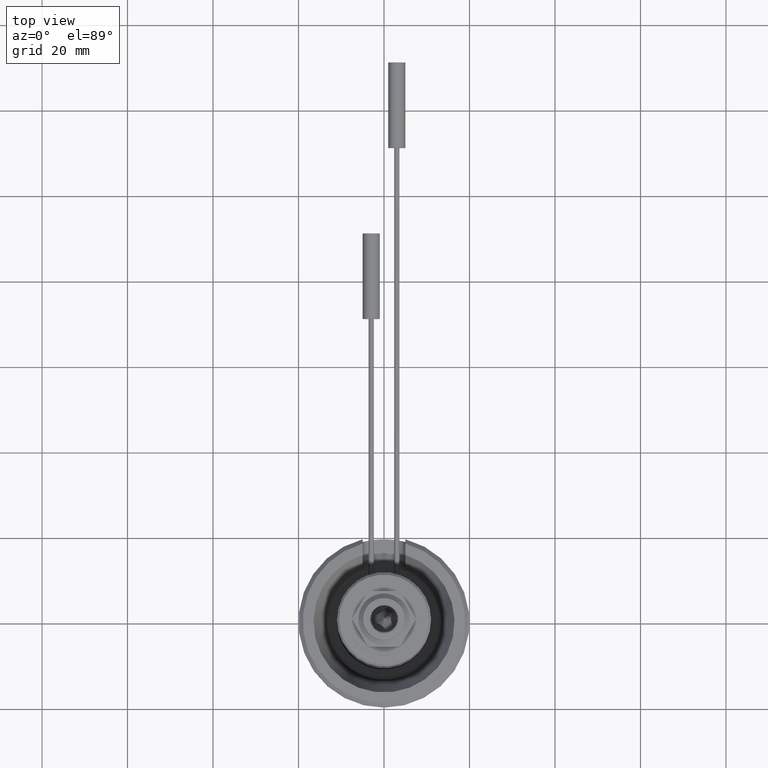
[diagram: clean part render]
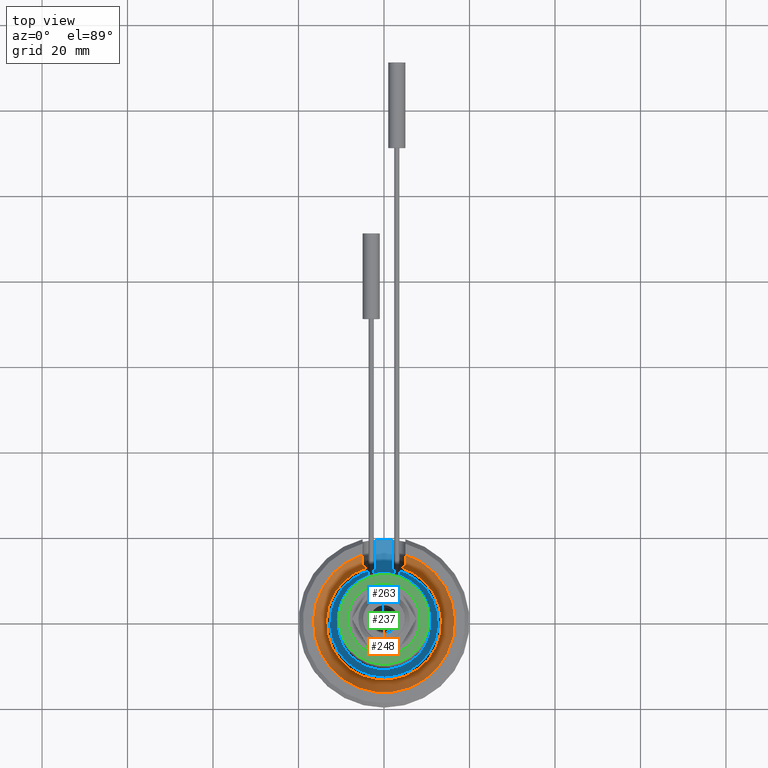
[diagram: same view with three faces highlighted in distinct colors, each labeled with its STEP entity id]
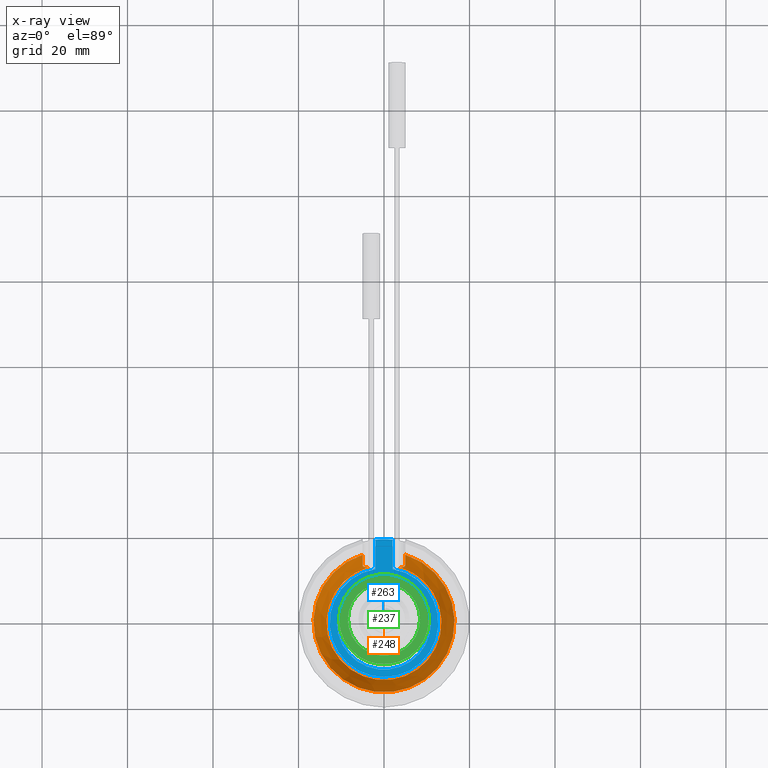
[diagram: x-ray of the same camera — body ghosted, the three highlighted faces saturated]
A machine part, top view with three faces highlighted in distinct colors.
The next image is the same camera in x-ray (body ghosted, the three faces saturated) — at least one of them is partly hidden behind the body in this view.
Their STEP definitions:

[orange] entity #248 — the highlighted conical surface has half-angle 18.76 deg.
#194=FACE_OUTER_BOUND('',#449,.T.);
#248=ADVANCED_FACE('',(#194),#303,.F.);
#303=CONICAL_SURFACE('',#1184,13.4573329734641,18.7599999999998);
#327=B_SPLINE_CURVE_WITH_KNOTS('',3,(#2021,#2022,#2023,#2024),
 .UNSPECIFIED.,.F.,.F.,(4,4),(0.,1.),.UNSPECIFIED.);
#328=B_SPLINE_CURVE_WITH_KNOTS('',3,(#2029,#2030,#2031,#2032),
 .UNSPECIFIED.,.F.,.F.,(4,4),(0.,1.),.UNSPECIFIED.);
#329=B_SPLINE_CURVE_WITH_KNOTS('',3,(#2034,#2035,#2036,#2037,#2038,#2039,
#2040,#2041,#2042,#2043),.UNSPECIFIED.,.F.,.F.,(4,3,3,4),(0.,0.339823540983943,
0.681058204121285,1.),.UNSPECIFIED.);
#330=B_SPLINE_CURVE_WITH_KNOTS('',3,(#2044,#2045,#2046,#2047,#2048,#2049,
#2050,#2051,#2052,#2053),.UNSPECIFIED.,.F.,.F.,(4,3,3,4),(0.,0.323201637820959,
0.646555919093283,1.),.UNSPECIFIED.);
#449=EDGE_LOOP('',(#623,#624,#625,#626,#627,#628));
#623=ORIENTED_EDGE('',*,*,#988,.F.);
#624=ORIENTED_EDGE('',*,*,#989,.T.);
#625=ORIENTED_EDGE('',*,*,#990,.F.);
#626=ORIENTED_EDGE('',*,*,#991,.T.);
#627=ORIENTED_EDGE('',*,*,#986,.T.);
#628=ORIENTED_EDGE('',*,*,#992,.T.);
#863=VERTEX_POINT('',#2004);
#864=VERTEX_POINT('',#2006);
#865=VERTEX_POINT('',#2025);
#866=VERTEX_POINT('',#2026);
#867=VERTEX_POINT('',#2028);
#868=VERTEX_POINT('',#2033);
#986=EDGE_CURVE('',#864,#863,#1091,.T.);
#988=EDGE_CURVE('',#865,#866,#327,.T.);
#989=EDGE_CURVE('',#865,#867,#1092,.T.);
#990=EDGE_CURVE('',#868,#867,#328,.T.);
#991=EDGE_CURVE('',#868,#864,#329,.T.);
#992=EDGE_CURVE('',#863,#866,#330,.T.);
#1091=CIRCLE('',#1181,13.4573329734641);
#1092=CIRCLE('',#1183,16.4996646888082);
#1181=AXIS2_PLACEMENT_3D('',#2005,#1409,#1410);
#1183=AXIS2_PLACEMENT_3D('',#2027,#1413,#1414);
#1184=AXIS2_PLACEMENT_3D('',#2054,#1415,#1416);
#1409=DIRECTION('',(0.,0.,-1.));
#1410=DIRECTION('',(1.,0.,0.));
#1413=DIRECTION('',(0.,0.,1.));
#1414=DIRECTION('',(1.,0.,0.));
#1415=DIRECTION('',(0.,0.,1.));
#1416=DIRECTION('',(1.,0.,2.25986598766589E-16));
#2004=CARTESIAN_POINT('',(-3.72097542149328,12.9326777069301,16.0427162152864));
#2005=CARTESIAN_POINT('',(0.,0.,16.0427162152864));
#2006=CARTESIAN_POINT('',(3.72097542149328,12.9326777069301,16.0427162152864));
#2021=CARTESIAN_POINT('',(-5.,15.7238333380606,25.));
#2022=CARTESIAN_POINT('',(-5.,14.9509270720782,22.8313977173449));
#2023=CARTESIAN_POINT('',(-5.,14.1735049763933,20.6643664506033));
#2024=CARTESIAN_POINT('',(-5.,13.3887916455741,18.5));
#2025=CARTESIAN_POINT('',(-5.,15.7238333380606,25.));
#2026=CARTESIAN_POINT('',(-5.,13.3887916455741,18.5));
#2027=CARTESIAN_POINT('',(0.,0.,25.));
#2028=CARTESIAN_POINT('',(5.,15.7238333380606,25.));
#2029=CARTESIAN_POINT('',(5.,13.3887916455741,18.5));
#2030=CARTESIAN_POINT('',(5.,14.1734998842274,20.6643524055853));
#2031=CARTESIAN_POINT('',(5.,14.9509132169483,22.8313588429463));
#2032=CARTESIAN_POINT('',(5.,15.7238333380606,25.));
#2033=CARTESIAN_POINT('',(5.,13.3887916455741,18.5));
#2034=CARTESIAN_POINT('',(5.,13.3887916455741,18.5));
#2035=CARTESIAN_POINT('',(5.,13.2759832467154,18.1888561666447));
#2036=CARTESIAN_POINT('',(4.95019343195471,13.1781053538942,17.8671666394606));
#2037=CARTESIAN_POINT('',(4.84916539594733,13.1045059535723,17.5607148747392));
#2038=CARTESIAN_POINT('',(4.74787858248229,13.0307180326531,17.2534781515874));
#2039=CARTESIAN_POINT('',(4.59170950224442,12.9795195815167,16.953256218878));
#2040=CARTESIAN_POINT('',(4.39212660040743,12.9526195546608,16.6895496892698));
#2041=CARTESIAN_POINT('',(4.20519581128553,12.9274247949831,16.4425602466746));
#2042=CARTESIAN_POINT('',(3.97539246913384,12.9224518545702,16.2208989260185));
#2043=CARTESIAN_POINT('',(3.72097542149328,12.9326777069301,16.0427162152864));
#2044=CARTESIAN_POINT('',(-3.72097542149328,12.9326777069301,16.0427162152864));
#2045=CARTESIAN_POINT('',(-3.97868984944148,12.9223193220827,16.2232082687571));
#2046=CARTESIAN_POINT('',(-4.21117103456396,12.9275712022819,16.4483798259103));
#2047=CARTESIAN_POINT('',(-4.39947811764517,12.9536234775892,16.6993043669343));
#2048=CARTESIAN_POINT('',(-4.58785706665572,12.9796856955442,16.950324671352));
#2049=CARTESIAN_POINT('',(-4.73700837647282,13.0275616756409,17.2337883429949));
#2050=CARTESIAN_POINT('',(-4.83697079770243,13.0959008858126,17.5245018231777));
#2051=CARTESIAN_POINT('',(-4.94610794272809,13.1705123868117,17.8418974890425));
#2052=CARTESIAN_POINT('',(-5.,13.2715980175315,18.1767609943685));
#2053=CARTESIAN_POINT('',(-5.,13.3887916455741,18.5));
#2054=CARTESIAN_POINT('',(0.,0.,16.0427162152864));

[blue] entity #263 — the highlighted planar face has unit normal (0, 0, -1).
#72=PLANE('',#1212);
#120=LINE('',#2148,#164);
#121=LINE('',#2149,#165);
#164=VECTOR('',#1479,1.);
#165=VECTOR('',#1480,1.);
#263=ADVANCED_FACE('',(#383,#384),#72,.F.);
#383=FACE_BOUND('',#471,.T.);
#384=FACE_BOUND('',#472,.T.);
#471=EDGE_LOOP('',(#668));
#472=EDGE_LOOP('',(#669,#670,#671,#672));
#668=ORIENTED_EDGE('',*,*,#957,.F.);
#669=ORIENTED_EDGE('',*,*,#1021,.F.);
#670=ORIENTED_EDGE('',*,*,#1022,.T.);
#671=ORIENTED_EDGE('',*,*,#984,.T.);
#672=ORIENTED_EDGE('',*,*,#1023,.T.);
#844=VERTEX_POINT('',#1820);
#861=VERTEX_POINT('',#1989);
#862=VERTEX_POINT('',#1990);
#893=VERTEX_POINT('',#2146);
#894=VERTEX_POINT('',#2147);
#957=EDGE_CURVE('',#844,#844,#1073,.T.);
#984=EDGE_CURVE('',#861,#862,#1090,.T.);
#1021=EDGE_CURVE('',#893,#894,#1105,.T.);
#1022=EDGE_CURVE('',#893,#861,#120,.T.);
#1023=EDGE_CURVE('',#862,#894,#121,.T.);
#1073=CIRCLE('',#1152,11.0000000000001);
#1090=CIRCLE('',#1180,12.699833762822);
#1105=CIRCLE('',#1211,19.5);
#1152=AXIS2_PLACEMENT_3D('',#1819,#1343,#1344);
#1180=AXIS2_PLACEMENT_3D('',#1988,#1407,#1408);
#1211=AXIS2_PLACEMENT_3D('',#2145,#1477,#1478);
#1212=AXIS2_PLACEMENT_3D('',#2150,#1481,#1482);
#1343=DIRECTION('',(0.,0.,1.));
#1344=DIRECTION('',(1.,0.,0.));
#1407=DIRECTION('',(0.,0.,1.));
#1408=DIRECTION('',(1.,0.,0.));
#1477=DIRECTION('',(0.,0.,-1.));
#1478=DIRECTION('',(-1.,0.,0.));
#1479=DIRECTION('',(0.,-1.,0.));
#1480=DIRECTION('',(0.,1.,0.));
#1481=DIRECTION('',(0.,0.,-1.));
#1482=DIRECTION('',(-1.,0.,0.));
#1819=CARTESIAN_POINT('',(0.,0.,15.5));
#1820=CARTESIAN_POINT('',(11.0000000000001,0.,15.5));
#1988=CARTESIAN_POINT('',(0.,0.,15.5));
#1989=CARTESIAN_POINT('',(-2.,12.541362669316,15.5));
#1990=CARTESIAN_POINT('',(2.,12.541362669316,15.5));
#2145=CARTESIAN_POINT('',(0.,0.,15.5));
#2146=CARTESIAN_POINT('',(-2.,19.3971647412708,15.5));
#2147=CARTESIAN_POINT('',(2.,19.3971647412708,15.5));
#2148=CARTESIAN_POINT('',(-2.,11.6741499734804,15.5));
#2149=CARTESIAN_POINT('',(2.,18.8480768249708,15.5));
#2150=CARTESIAN_POINT('',(5.,11.,15.5));

[green] entity #237 — the highlighted planar face has unit normal (0, 0, -1).
#59=PLANE('',#1156);
#237=ADVANCED_FACE('',(#351,#352),#59,.F.);
#351=FACE_BOUND('',#429,.T.);
#352=FACE_BOUND('',#430,.T.);
#429=EDGE_LOOP('',(#581));
#430=EDGE_LOOP('',(#582));
#581=ORIENTED_EDGE('',*,*,#960,.T.);
#582=ORIENTED_EDGE('',*,*,#961,.F.);
#847=VERTEX_POINT('',#1941);
#848=VERTEX_POINT('',#1943);
#960=EDGE_CURVE('',#847,#847,#1074,.T.);
#961=EDGE_CURVE('',#848,#848,#1075,.T.);
#1074=CIRCLE('',#1154,10.5);
#1075=CIRCLE('',#1155,8.45);
#1154=AXIS2_PLACEMENT_3D('',#1940,#1347,#1348);
#1155=AXIS2_PLACEMENT_3D('',#1942,#1349,#1350);
#1156=AXIS2_PLACEMENT_3D('',#1944,#1351,#1352);
#1347=DIRECTION('',(0.,0.,1.));
#1348=DIRECTION('',(-1.,0.,0.));
#1349=DIRECTION('',(0.,0.,1.));
#1350=DIRECTION('',(1.,0.,0.));
#1351=DIRECTION('',(0.,0.,-1.));
#1352=DIRECTION('',(-1.,0.,0.));
#1940=CARTESIAN_POINT('',(0.,0.,59.5));
#1941=CARTESIAN_POINT('',(-10.5,0.,59.5));
#1942=CARTESIAN_POINT('',(0.,0.,59.5));
#1943=CARTESIAN_POINT('',(8.45,0.,59.5));
#1944=CARTESIAN_POINT('',(-11.,0.,59.5));